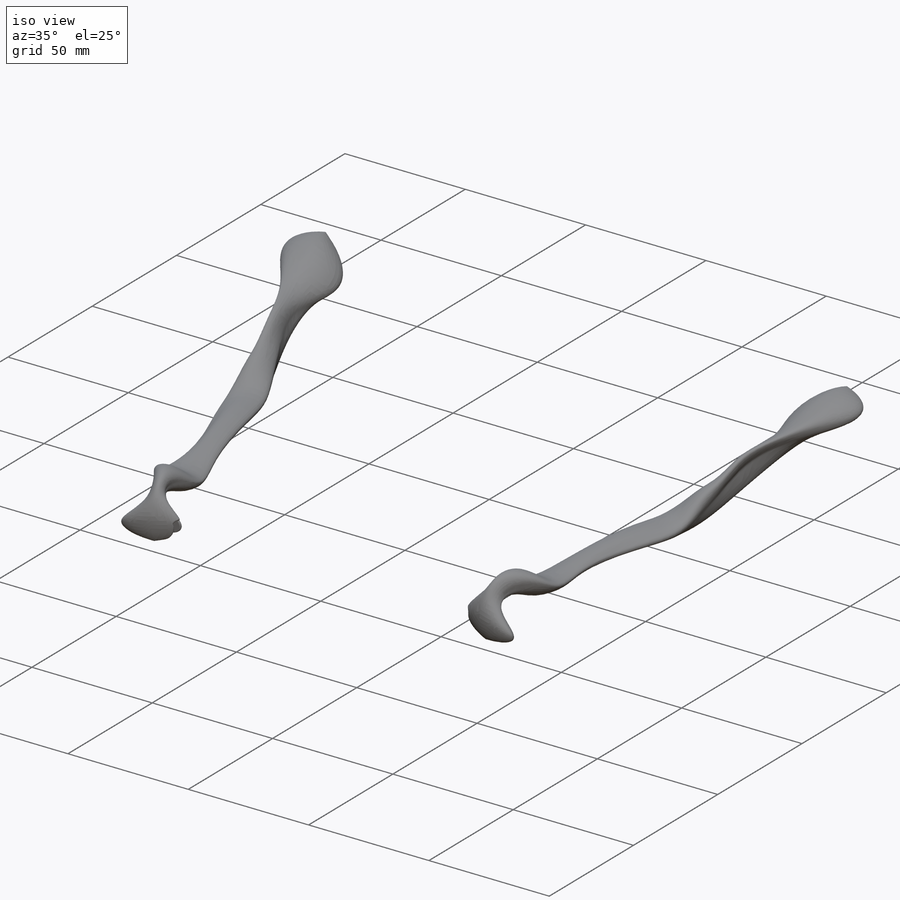
[diagram: iso view]
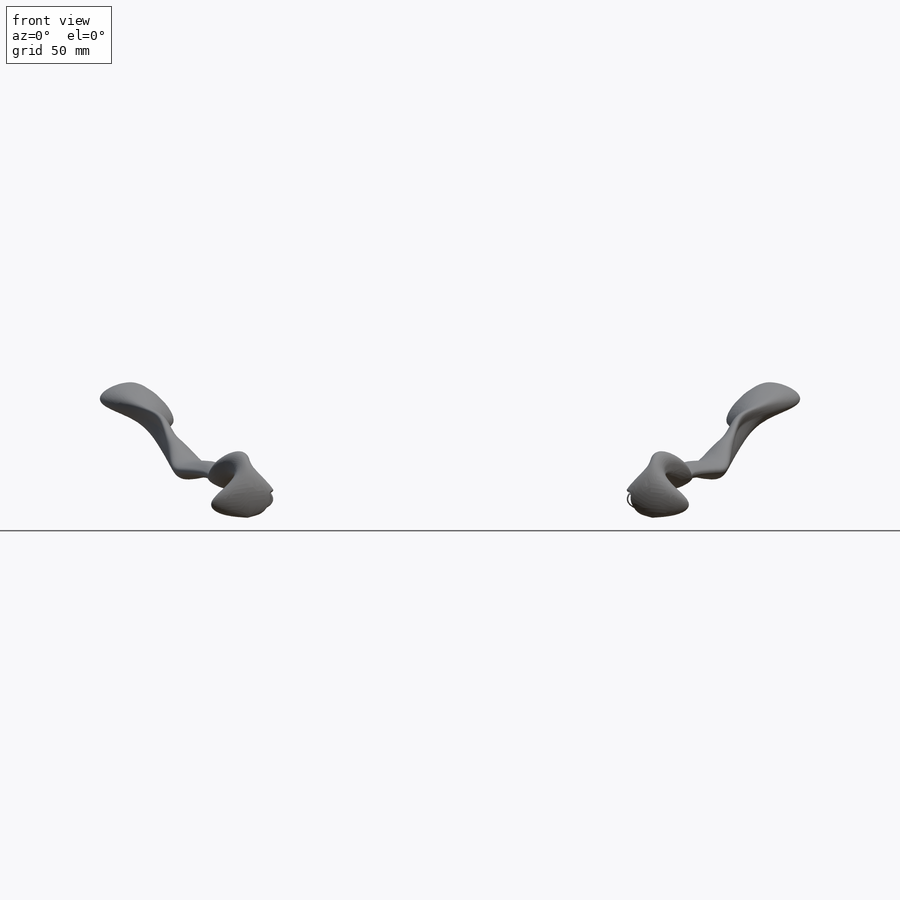
[diagram: front view]
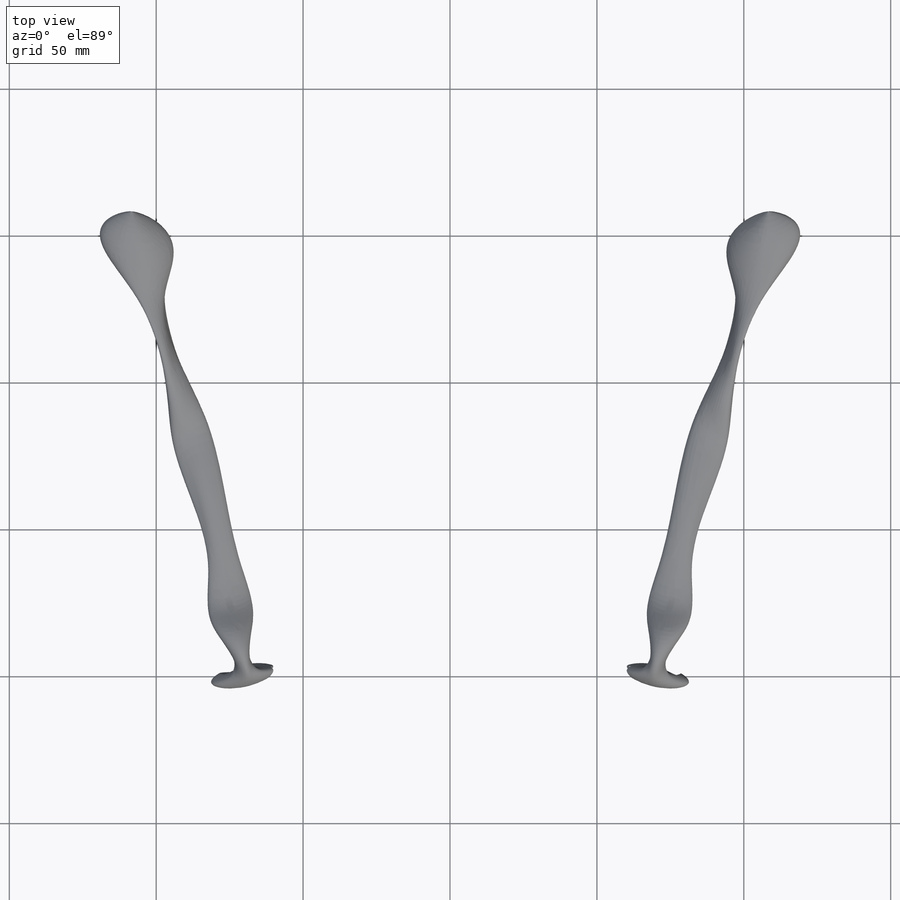
[diagram: top view]
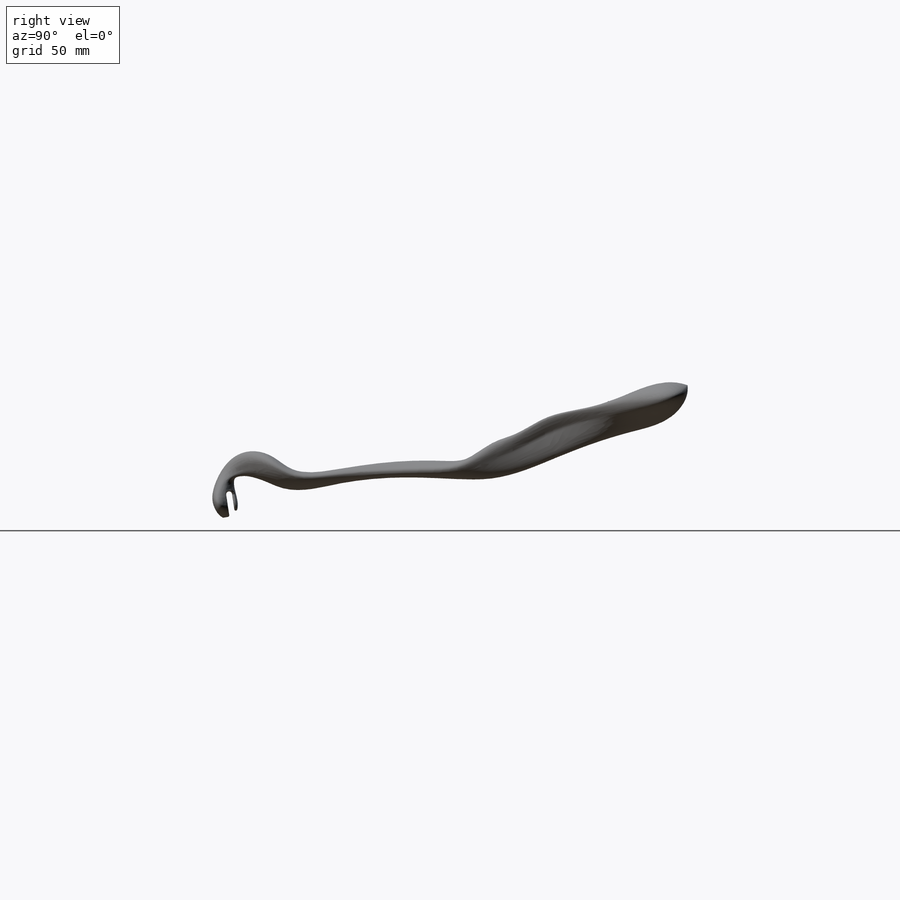
[diagram: right view]
SOLIDWORKS PART (.sldprt)
format: sldprt  version: not decoded by parser v0  size: 12,670,976 bytes
history: native  units: mm
features: sketch x56, plane x13, fillet x10, revolve x8, cut_extrude x3, extrude x3, material x1, mirror x1 (+10 scaffold rows collapsed)
feature tree (105):
  scaffold x10  (default folders/planes/origin — collapsed)
  material  "Mogno"
  plane  "Plano frontal"
  plane  "Plano superior"
  plane  "Plano direito"
  sketch  "side-view"
  sketch  "sup-view"
  sketch  "Imagem de esboço3"
  sketch  "under-view"
  sketch  "Imagem de esboço4"
  plane  "Plano1"
  sketch  "Esboço2"
  sketch  "Esboço3"
  sketch  "3DSketch1"
  sketch  "3DSketch3"
  plane  "Plano2"
  sketch  "Esboço6"
  sketch  "Esboço7"
  sketch  "3DSketch4"
  plane  "Plano3"
  sketch  "Esboço8"
  sketch  "Esboço9"
  sketch  "3DSketch5"
  plane  "Plano4"
  sketch  "Esboço11"
  revolve  "Revolução1"  Angle=360deg
  plane  "Plano5"
  sketch  "Esboço12"
  revolve  "Revolução2"  Angle=360deg
  sketch  "3DSketch6"
  sketch  "3DSketch7"
  sketch  "3DSketch8"
  sketch  "3DSketch9"
  sketch  "3DSketch10"
  plane  "Plano8"
  sketch  "Esboço17"
  sketch  "Esboço18"
  sketch  "3DSketch11"
  sketch  "Esboço10"  dims[D1=1.0mm D2=1.0mm]
  cut_extrude  "Corte-extrusão1"  Depth=10mm
  sketch  "Esboço20"  dims[D1=2.0mm D2=2.0mm]
  cut_extrude  "Corte-extrusão3"  [1 undecoded]
  fillet  "Filete4"  Radius=2mm
  fillet  "Filete1"  Radius=1mm
  fillet  "Filete3"  Radius=0.5mm
  sketch  "Esboço21"
  sketch  "Esboço22"
  sketch  "3DSketch12"
  sketch  "3DSketch13"
  sketch  "3DSketch14"
  sketch  "Esboço23"
  revolve  "Revolução4"  Angle=360deg
  fillet  "Filete5"  Radius=5mm
  sketch  "Esboço24"
  extrude  "Ressalto-extrusão1"  Depth=5mm
  plane  "Plano11"  Offset=35mm
  sketch  "Esboço40"
  revolve  "Revolução8"  Angle=360deg
  sketch  "3DSketch18"
  plane  "Plano12"
  sketch  "Esboço41"
  revolve  "Revolução9"  Angle=360deg
  mirror  "Espelhar2"
  fillet  "Filete6"  Radius=2.5mm
  sketch  "Esboço25"
  sketch  "Esboço26"
  plane  "Plano9"
  sketch  "Esboço27"
  sketch  "Esboço28"
  sketch  "3DSketch15"
  sketch  "Esboço31"  dims[D1=1.0mm D2=1.0mm]
  cut_extrude  "Corte-extrusão4"  [1 undecoded]
  fillet  "Filete9"  Radius=0.5mm
  fillet  "Filete10"  Radius=3mm
  sketch  "Esboço29"
  sketch  "Esboço30"
  plane  "Plano10"
  sketch  "Esboço32"
  sketch  "Esboço33"  dims[D1=56.309mm D2=74.306mm D3=77.874mm]
  sketch  "3DSketch16"
  sketch  "Esboço34"
  sketch  "Esboço35"
  sketch  "Esboço36"
  revolve  "Revolução5"  Angle=360deg
  sketch  "Esboço37"
  revolve  "Revolução6"  Angle=360deg
  sketch  "Esboço38"
  revolve  "Revolução7"  Angle=360deg
  sketch  "3DSketch17"
  fillet  "Filete11"  Radius=3mm
  sketch  "Esboço39"
  extrude  "Ressalto-extrusão2"  Depth=3mm
  sketch  "Esboço42"
  extrude  "Ressalto-extrusão3"  Depth=3mm
  fillet  "Filete12"  Radius=6mm
  fillet  "Filete13"  Radius=6mm
decode coverage: 26 of 81 modeling features carry decoded parameters
note: 2 parameter values undecoded
note: suppression state not decoded; provenance and decode notes live in map.json
